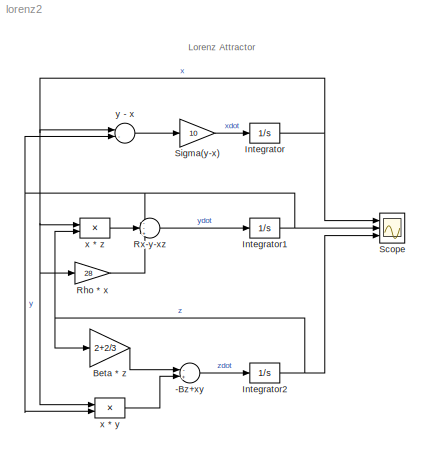
MODEL lorenz2
KIND model
BLOCK [Sum] -Bz+xy
  IconShape = round
  Inputs = -+|
  Ports = [2, 1]
  SaturateOnIntegerOverflow = off
BLOCK [Gain] Beta * z
  Gain = 2+2/3
BLOCK [Integrator] Integrator
  InitialCondition = 1
  Ports = [1, 1]
BLOCK [Integrator] Integrator1
  InitialCondition = 1
  Ports = [1, 1]
BLOCK [Integrator] Integrator2
  InitialCondition = 1
  Ports = [1, 1]
BLOCK [Gain] Rho * x
  Gain = 28
BLOCK [Sum] Rx-y-xz
  IconShape = round
  Inputs = --+
  Ports = [3, 1]
BLOCK [Scope] Scope
  DataFormat = Array
  NumInputPorts = 3
  Ports = [3]
  TickLabels = on
  TimeRange = 20
  YMax = 25~25~50
  YMin = -25~-25~-50
BLOCK [Gain] Sigma(y-x)
  Gain = 10
BLOCK [Product] x * y
  Ports = [2, 1]
BLOCK [Product] x * z
  Ports = [2, 1]
BLOCK [Sum] y - x
  IconShape = round
  Inputs = |-+
  Ports = [2, 1]
ANNOTATION (root): Lorenz Attractor
LINE -Bz+xy:1 -> Integrator2:1
LINE Beta * z:1 -> -Bz+xy:1
NET Integrator1:1 -> Rx-y-xz:1, Scope:2, x * y:2, y - x:2
NET Integrator2:1 -> Beta * z:1, Scope:3, x * z:2
NET Integrator:1 -> Rho * x:1, Scope:1, x * y:1, x * z:1, y - x:1
LINE Rho * x:1 -> Rx-y-xz:3
LINE Rx-y-xz:1 -> Integrator1:1
LINE Sigma(y-x):1 -> Integrator:1
LINE x * y:1 -> -Bz+xy:2
LINE x * z:1 -> Rx-y-xz:2
LINE y - x:1 -> Sigma(y-x):1
note: NET lines group one-source signal fan-out (src -> all destinations, sorted); 1:1 wires keep LINE
